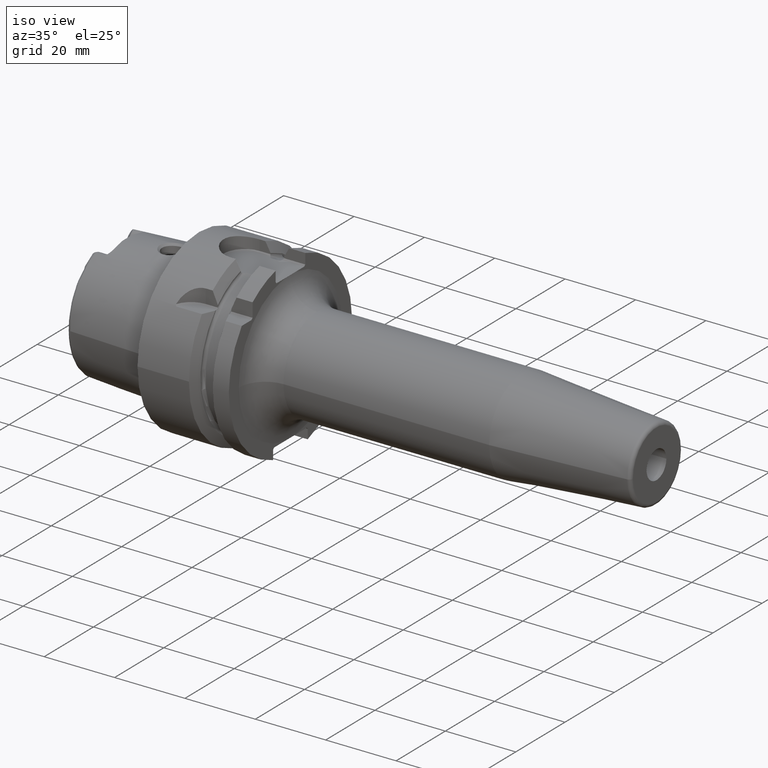
[diagram: clean part render]
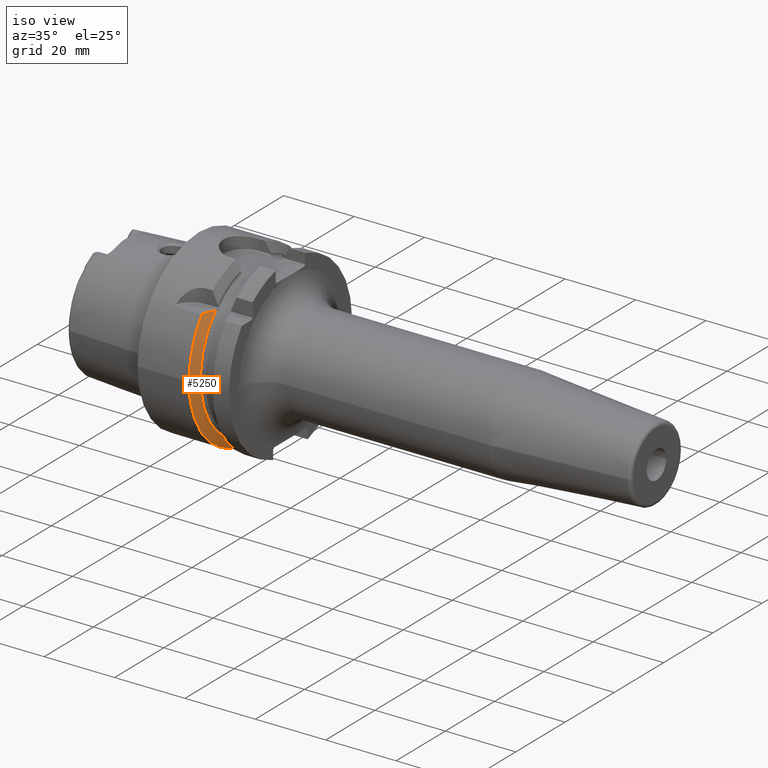
[diagram: same view with one face highlighted and labeled with its STEP entity id]
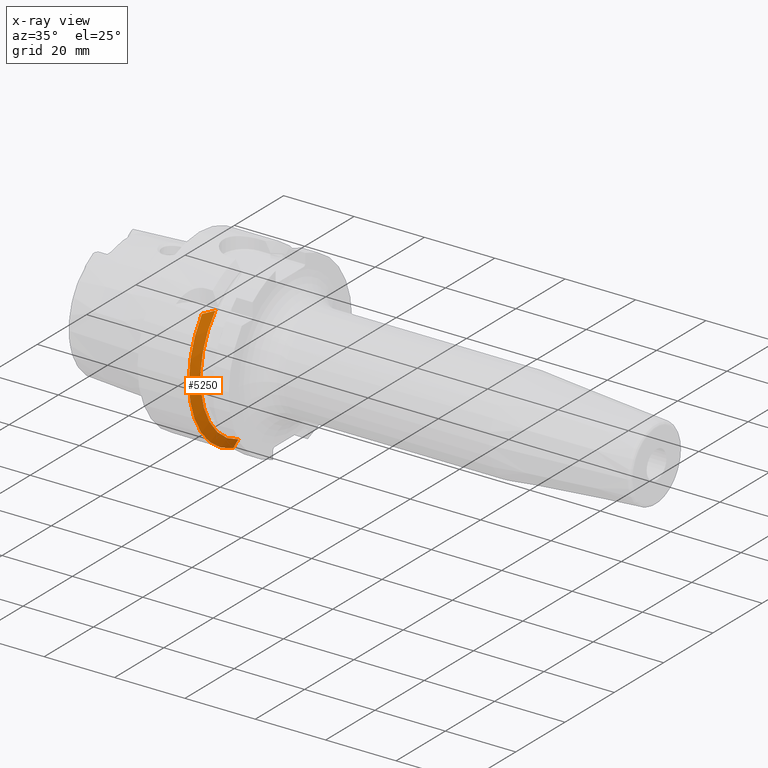
[diagram: x-ray of the same camera — body ghosted, the highlighted face saturated]
A machine part, iso view. The second image highlights one B-rep face of the part: STEP entity #5250.
The next image is the same camera in x-ray: the body ghosted, the highlighted face saturated — about 0% of this face is hidden behind the body in this view.
In plain terms, the highlighted conical surface has half-angle 60 deg.
Its self-contained STEP definition (entity closure, byte-faithful):
#970=CARTESIAN_POINT('',(1.460806716851E1,0.E0,0.E0));
#971=DIRECTION('',(1.E0,0.E0,0.E0));
#972=DIRECTION('',(0.E0,-7.893060243024E-1,6.14E-1));
#973=AXIS2_PLACEMENT_3D('',#970,#971,#972);
#1091=CARTESIAN_POINT('',(1.460806716851E1,0.E0,0.E0));
#1092=DIRECTION('',(1.E0,0.E0,0.E0));
#1093=DIRECTION('',(0.E0,-1.E0,0.E0));
#1094=AXIS2_PLACEMENT_3D('',#1091,#1092,#1093);
#1847=CARTESIAN_POINT('',(1.60875E1,0.E0,0.E0));
#1848=DIRECTION('',(1.E0,0.E0,0.E0));
#1849=DIRECTION('',(0.E0,-7.293684165425E-1,6.841211244731E-1));
#1850=AXIS2_PLACEMENT_3D('',#1847,#1848,#1849);
#1860=CARTESIAN_POINT('',(1.60875E1,-7.0175E0,-2.131192663117E1));
#1861=CARTESIAN_POINT('',(1.593188333563E1,-7.0175E0,-2.159569853632E1));
#1862=CARTESIAN_POINT('',(1.561480512555E1,-7.0175E0,-2.217279119970E1));
#1863=CARTESIAN_POINT('',(1.512190269435E1,-7.0175E0,-2.306665585329E1));
#1864=CARTESIAN_POINT('',(1.478131530124E1,-7.0175E0,-2.368224465230E1));
#1865=CARTESIAN_POINT('',(1.460806716851E1,-7.0175E0,-2.399488890889E1));
#1912=CARTESIAN_POINT('',(1.60875E1,-1.636523825010E1,1.535E1));
#1913=CARTESIAN_POINT('',(1.594222955282E1,-1.671021589054E1,1.535E1));
#1914=CARTESIAN_POINT('',(1.563917139666E1,-1.741962945744E1,1.535E1));
#1915=CARTESIAN_POINT('',(1.514914658008E1,-1.853580810939E1,1.535E1));
#1916=CARTESIAN_POINT('',(1.479309423109E1,-1.932662776812E1,1.535E1));
#1917=CARTESIAN_POINT('',(1.460806716851E1,-1.973265060756E1,1.535E1));
#2997=CARTESIAN_POINT('',(1.60875E1,-7.0175E0,-2.131192663117E1));
#2999=VERTEX_POINT('',#2997);
#3005=VERTEX_POINT('',#1865);
#3042=CARTESIAN_POINT('',(1.60875E1,-1.636523825010E1,1.535E1));
#3044=VERTEX_POINT('',#3042);
#3052=VERTEX_POINT('',#1917);
#3149=CARTESIAN_POINT('',(1.460806716851E1,-2.5E1,0.E0));
#3150=VERTEX_POINT('',#3149);
#5236=CARTESIAN_POINT('',(1.534778358426E1,0.E0,0.E0));
#5237=DIRECTION('',(-1.E0,0.E0,0.E0));
#5238=DIRECTION('',(0.E0,1.E0,0.E0));
#5239=AXIS2_PLACEMENT_3D('',#5236,#5237,#5238);
#5240=CONICAL_SURFACE('',#5239,2.371877358474E1,6.E1);
#5241=ORIENTED_EDGE('',*,*,#4565,.T.);
#5243=ORIENTED_EDGE('',*,*,#5242,.T.);
#5244=ORIENTED_EDGE('',*,*,#4377,.F.);
#5245=ORIENTED_EDGE('',*,*,#4275,.F.);
#5247=ORIENTED_EDGE('',*,*,#5246,.F.);
#5248=EDGE_LOOP('',(#5241,#5243,#5244,#5245,#5247));
#5249=FACE_OUTER_BOUND('',#5248,.F.);
#5250=ADVANCED_FACE('',(#5249),#5240,.T.);
#974=CIRCLE('',#973,2.5E1);
#1095=CIRCLE('',#1094,2.5E1);
#1851=CIRCLE('',#1850,2.243754716948E1);
#1866=B_SPLINE_CURVE_WITH_KNOTS('',3,(#1860,#1861,#1862,#1863,#1864,#1865),
.UNSPECIFIED.,.F.,.F.,(4,1,1,4),(0.E0,3.333333333333E-1,6.666666666667E-1,1.E0),
.UNSPECIFIED.);
#1918=B_SPLINE_CURVE_WITH_KNOTS('',3,(#1912,#1913,#1914,#1915,#1916,#1917),
.UNSPECIFIED.,.F.,.F.,(4,1,1,4),(0.E0,3.333333333333E-1,6.666666666667E-1,1.E0),
.UNSPECIFIED.);
#4275=EDGE_CURVE('',#3052,#3150,#974,.T.);
#4377=EDGE_CURVE('',#3150,#3005,#1095,.T.);
#4565=EDGE_CURVE('',#3044,#2999,#1851,.T.);
#5242=EDGE_CURVE('',#2999,#3005,#1866,.T.);
#5246=EDGE_CURVE('',#3044,#3052,#1918,.T.);